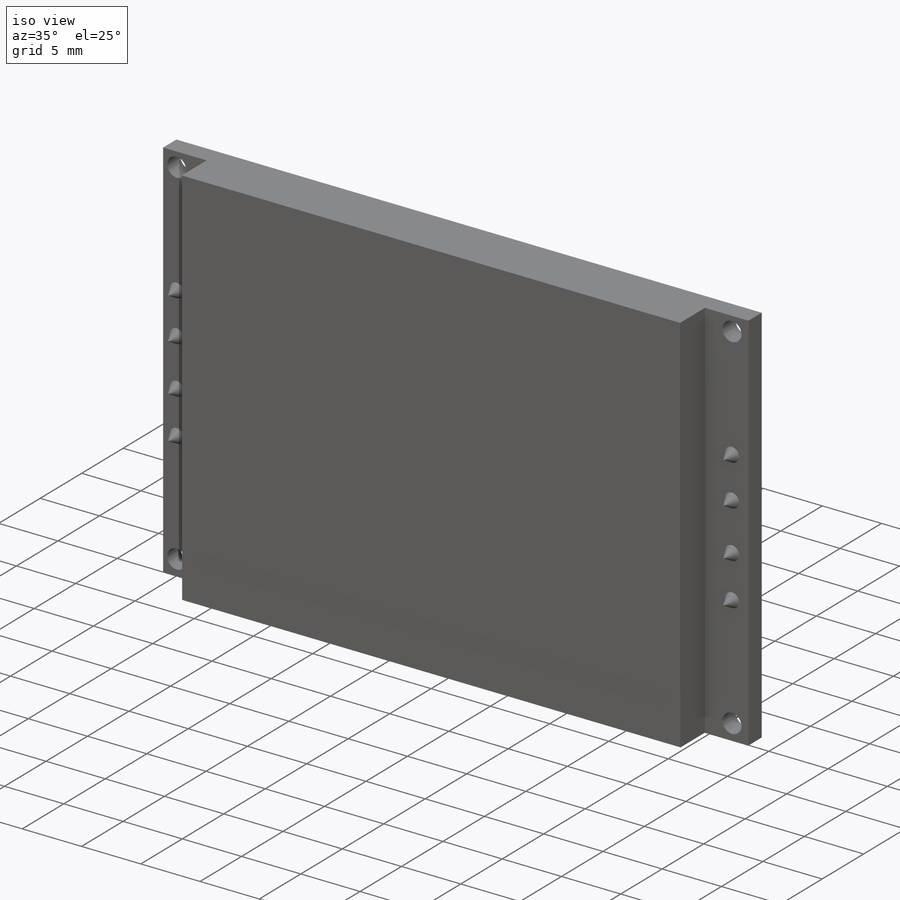
[diagram: iso view]
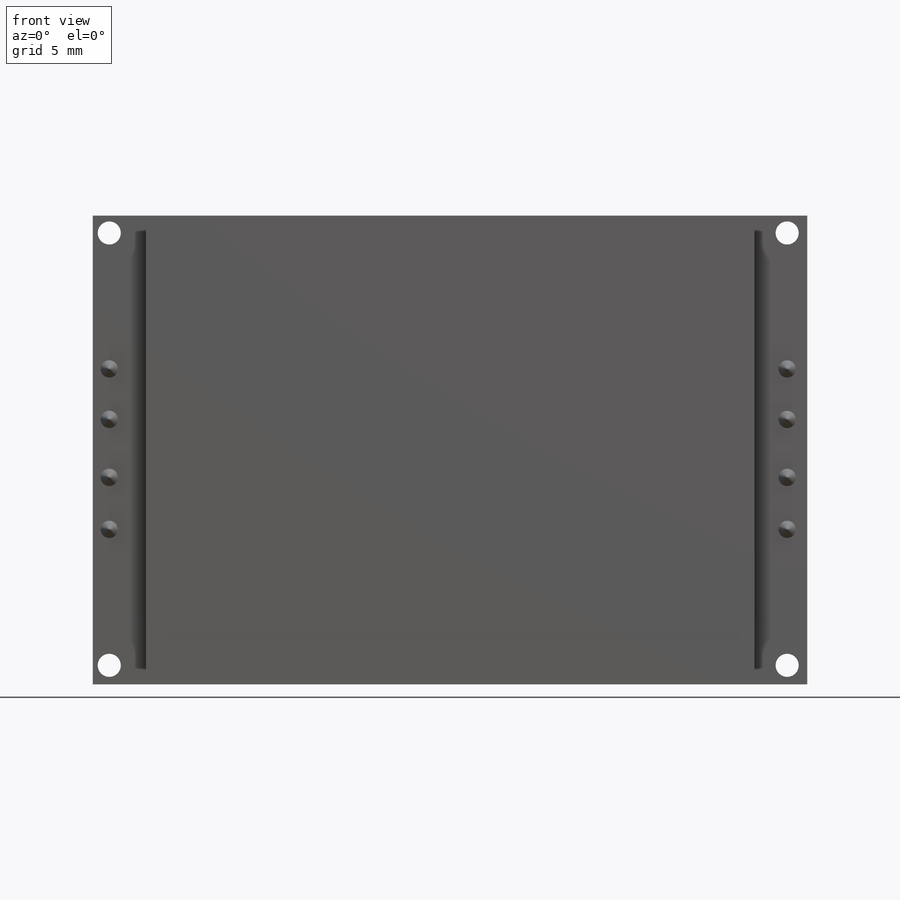
[diagram: front view]
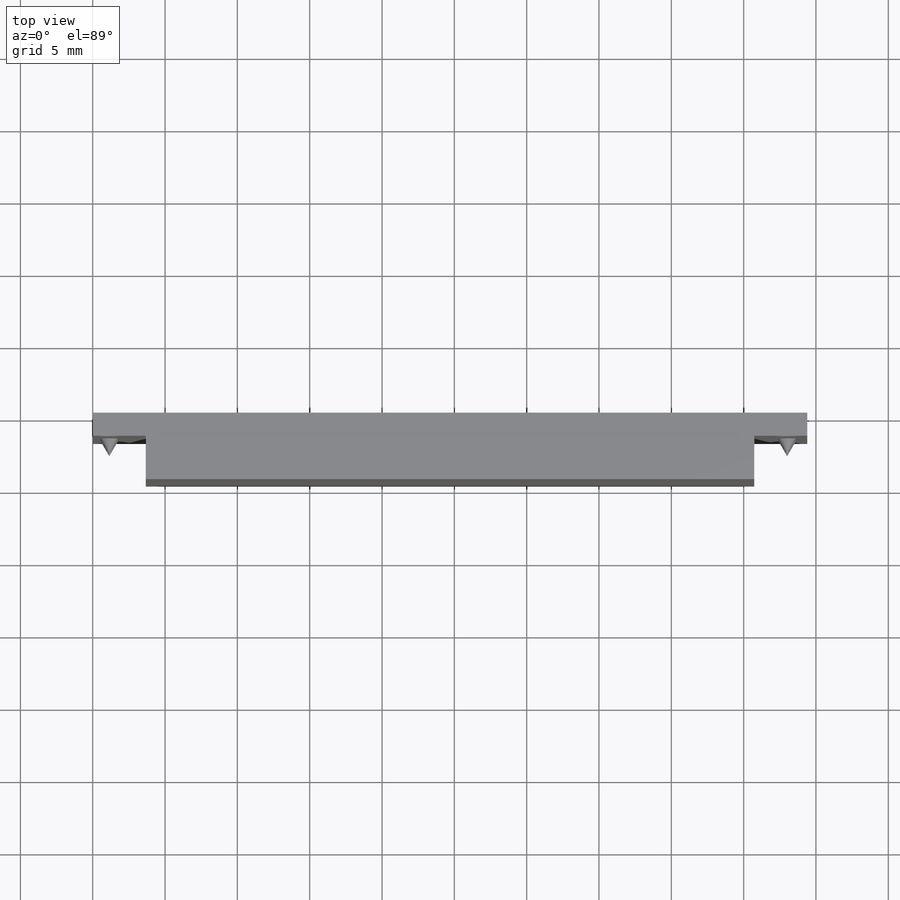
[diagram: top view]
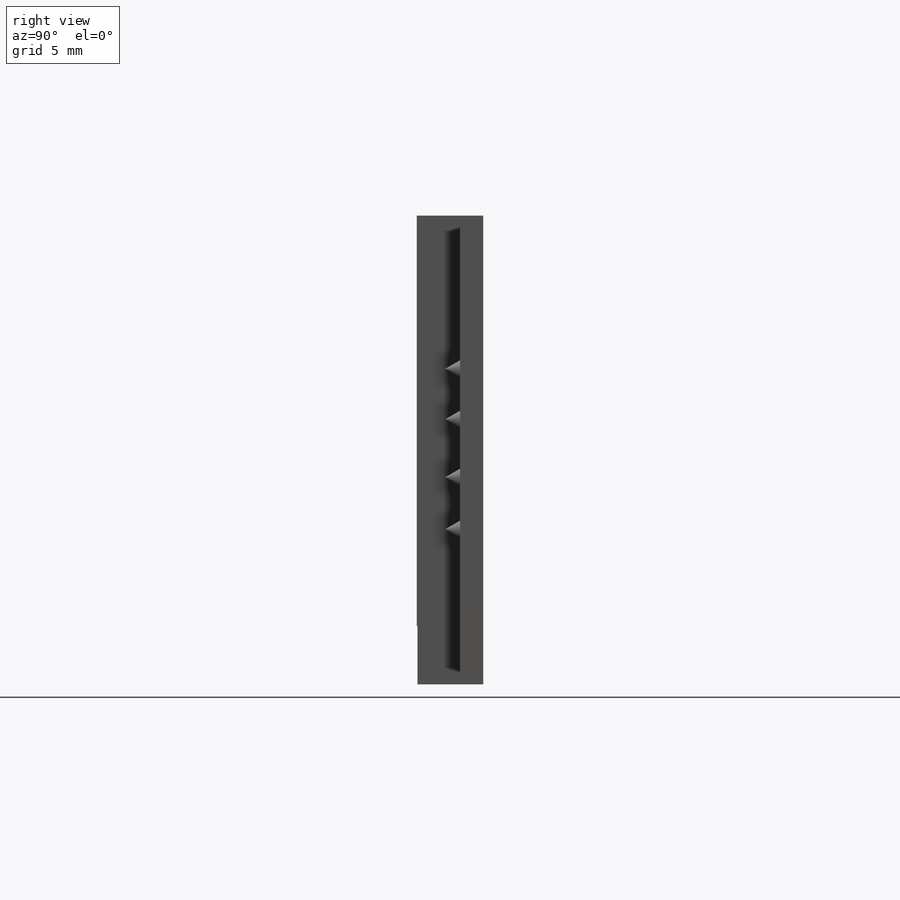
[diagram: right view]
SOLIDWORKS PART (.sldprt)
format: sldprt  version: not decoded by parser v0  size: 189,952 bytes
history: native  units: mm
features: plane x3, extrude x3, cut_extrude x2, material x1, sketch x1 + 4 further entries (+10 scaffold rows collapsed)
feature tree (24):
  scaffold x10  (default folders/planes/origin — collapsed)
  material  "Matériau <non spécifié>"
  plane  "Plan de face"
  plane  "Plan de dessus"
  plane  "Plan de droite"
  sketch  "Esquisse1"  dims[D1=49.4mm D2=32.4mm]
  extrude  "Boss.-Extru.1"  Depth=1.6mm
  "Esquisse5"
  extrude  "Boss.-Extru.2"  Depth=3mm
  "Esquisse6"
  cut_extrude  "Enlèv. mat.-Extru.1"  Depth=3mm
  "Esquisse7"
  cut_extrude  "Enlèv. mat.-Extru.2"  Depth=0.05mm
  "Esquisse8"
  extrude  "Boss.-Extru.3"  Depth=1.2mm
decode coverage: 6 of 6 modeling features carry decoded parameters; 4 rows unclassified (native names shown)
note: suppression state not decoded; provenance and decode notes live in map.json
